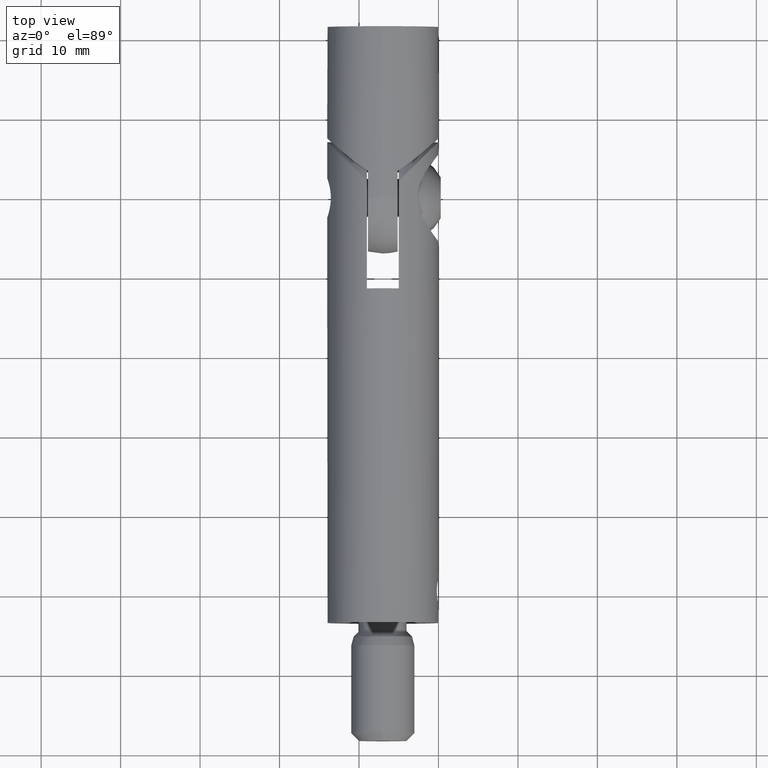
[diagram: clean part render]
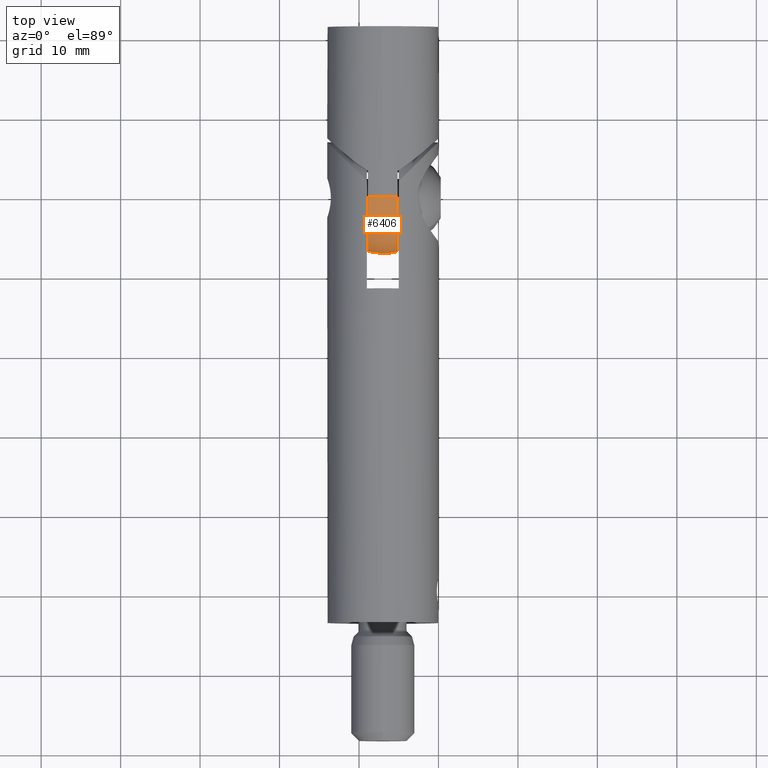
[diagram: same view with one face highlighted and labeled with its STEP entity id]
A machine part, top view. The second image highlights one B-rep face of the part: STEP entity #6406.
In plain terms, the highlighted spherical surface has radius 7 mm.
Its self-contained STEP definition (entity closure, byte-faithful):
#622 = VERTEX_POINT ( 'NONE', #16859 ) ;
#1337 = AXIS2_PLACEMENT_3D ( 'NONE', #6628, #16291, #10478 ) ;
#1378 = CARTESIAN_POINT ( 'NONE',  ( 0.0000000000000000000, 7.000000000000006200, 0.0000000000000000000 ) ) ;
#1525 = CARTESIAN_POINT ( 'NONE',  ( 0.0000000000000000000, 7.000000000000006200, 0.0000000000000000000 ) ) ;
#2273 = EDGE_CURVE ( 'NONE', #622, #5673, #10957, .T. ) ;
#2442 = DIRECTION ( 'NONE',  ( 0.0000000000000000000, 0.0000000000000000000, -1.000000000000000000 ) ) ;
#2445 = DIRECTION ( 'NONE',  ( 0.0000000000000000000, 1.000000000000000000, 0.0000000000000000000 ) ) ;
#2706 = DIRECTION ( 'NONE',  ( -1.000000000000000000, 0.0000000000000000000, 0.0000000000000000000 ) ) ;
#2827 = DIRECTION ( 'NONE',  ( 1.000000000000000000, 0.0000000000000000000, 0.0000000000000000000 ) ) ;
#3370 = CIRCLE ( 'NONE', #11514, 7.000000000000000000 ) ;
#3772 = AXIS2_PLACEMENT_3D ( 'NONE', #1525, #16583, #2827 ) ;
#3928 = ORIENTED_EDGE ( 'NONE', *, *, #2273, .F. ) ;
#4034 = EDGE_CURVE ( 'NONE', #5673, #4638, #5327, .T. ) ;
#4638 = VERTEX_POINT ( 'NONE', #14328 ) ;
#4986 = AXIS2_PLACEMENT_3D ( 'NONE', #6971, #2706, #16513 ) ;
#5327 = CIRCLE ( 'NONE', #1337, 6.745598564990360500 ) ;
#5673 = VERTEX_POINT ( 'NONE', #8794 ) ;
#6406 = ADVANCED_FACE ( 'NONE', ( #15219 ), #6578, .T. ) ;
#6570 = CARTESIAN_POINT ( 'NONE',  ( 0.0000000000000000000, 7.000000000000006200, 0.0000000000000000000 ) ) ;
#6578 = SPHERICAL_SURFACE ( 'NONE', #3772, 7.000000000000000000 ) ;
#6628 = CARTESIAN_POINT ( 'NONE',  ( 1.869999999999999200, 7.000000000000006200, 0.0000000000000000000 ) ) ;
#6663 = ORIENTED_EDGE ( 'NONE', *, *, #10428, .F. ) ;
#6761 = AXIS2_PLACEMENT_3D ( 'NONE', #1378, #11160, #8257 ) ;
#6971 = CARTESIAN_POINT ( 'NONE',  ( -1.869999999999998300, 7.000000000000006200, 0.0000000000000000000 ) ) ;
#6988 = DIRECTION ( 'NONE',  ( 0.0000000000000000000, 1.000000000000000000, 0.0000000000000000000 ) ) ;
#7634 = CIRCLE ( 'NONE', #11708, 7.000000000000000000 ) ;
#7835 = CARTESIAN_POINT ( 'NONE',  ( 0.0000000000000000000, 7.000000000000006200, 0.0000000000000000000 ) ) ;
#8257 = DIRECTION ( 'NONE',  ( 0.0000000000000000000, 0.0000000000000000000, -1.000000000000000000 ) ) ;
#8720 = ORIENTED_EDGE ( 'NONE', *, *, #16789, .F. ) ;
#8757 = ORIENTED_EDGE ( 'NONE', *, *, #4034, .F. ) ;
#8794 = CARTESIAN_POINT ( 'NONE',  ( 1.869999999999999200, 7.000000000000006200, 6.745598564990358700 ) ) ;
#9413 = CIRCLE ( 'NONE', #4986, 6.745598564990360500 ) ;
#9998 = ORIENTED_EDGE ( 'NONE', *, *, #16277, .F. ) ;
#10419 = CARTESIAN_POINT ( 'NONE',  ( -1.869999999999998300, 7.000000000000006200, -6.745598564990358700 ) ) ;
#10428 = EDGE_CURVE ( 'NONE', #14445, #16128, #7634, .T. ) ;
#10478 = DIRECTION ( 'NONE',  ( 0.0000000000000000000, 0.0000000000000000000, -1.000000000000000000 ) ) ;
#10869 = CARTESIAN_POINT ( 'NONE',  ( -1.869999999999998300, 7.000000000000006200, 6.745598564990358700 ) ) ;
#10957 = CIRCLE ( 'NONE', #6761, 7.000000000000000000 ) ;
#11160 = DIRECTION ( 'NONE',  ( 0.0000000000000000000, 1.000000000000000000, 0.0000000000000000000 ) ) ;
#11514 = AXIS2_PLACEMENT_3D ( 'NONE', #13653, #6988, #12514 ) ;
#11708 = AXIS2_PLACEMENT_3D ( 'NONE', #6570, #13472, #2442 ) ;
#12511 = EDGE_CURVE ( 'NONE', #15823, #622, #16379, .T. ) ;
#12514 = DIRECTION ( 'NONE',  ( 7.993605777301125500E-015, 0.0000000000000000000, -1.000000000000000000 ) ) ;
#12975 = CARTESIAN_POINT ( 'NONE',  ( 0.0000000000000000000, 7.000000000000006200, -7.000000000000000000 ) ) ;
#13472 = DIRECTION ( 'NONE',  ( 0.0000000000000000000, 1.000000000000000000, 0.0000000000000000000 ) ) ;
#13653 = CARTESIAN_POINT ( 'NONE',  ( 0.0000000000000000000, 7.000000000000006200, 0.0000000000000000000 ) ) ;
#14021 = ORIENTED_EDGE ( 'NONE', *, *, #12511, .F. ) ;
#14328 = CARTESIAN_POINT ( 'NONE',  ( 1.869999999999999200, 7.000000000000006200, -6.745598564990358700 ) ) ;
#14445 = VERTEX_POINT ( 'NONE', #12975 ) ;
#14791 = DIRECTION ( 'NONE',  ( 5.329070518200750600E-015, 0.0000000000000000000, -1.000000000000000000 ) ) ;
#15219 = FACE_OUTER_BOUND ( 'NONE', #15331, .T. ) ;
#15331 = EDGE_LOOP ( 'NONE', ( #8720, #6663, #9998, #8757, #3928, #14021 ) ) ;
#15390 = AXIS2_PLACEMENT_3D ( 'NONE', #7835, #2445, #14791 ) ;
#15823 = VERTEX_POINT ( 'NONE', #10869 ) ;
#16128 = VERTEX_POINT ( 'NONE', #10419 ) ;
#16277 = EDGE_CURVE ( 'NONE', #4638, #14445, #3370, .T. ) ;
#16291 = DIRECTION ( 'NONE',  ( 1.000000000000000000, 0.0000000000000000000, 0.0000000000000000000 ) ) ;
#16379 = CIRCLE ( 'NONE', #15390, 7.000000000000000000 ) ;
#16513 = DIRECTION ( 'NONE',  ( 0.0000000000000000000, 0.0000000000000000000, 1.000000000000000000 ) ) ;
#16583 = DIRECTION ( 'NONE',  ( 0.0000000000000000000, 1.000000000000000000, 0.0000000000000000000 ) ) ;
#16789 = EDGE_CURVE ( 'NONE', #16128, #15823, #9413, .T. ) ;
#16859 = CARTESIAN_POINT ( 'NONE',  ( 8.572527594031471200E-016, 7.000000000000006200, 7.000000000000000000 ) ) ;